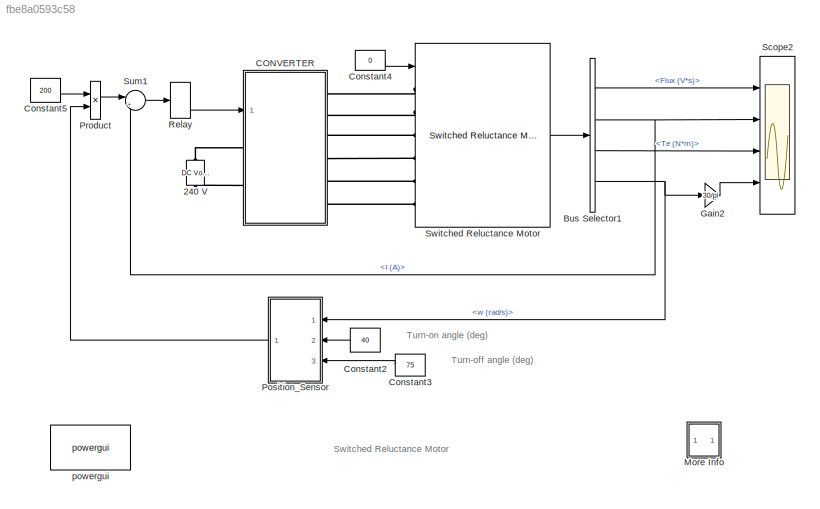
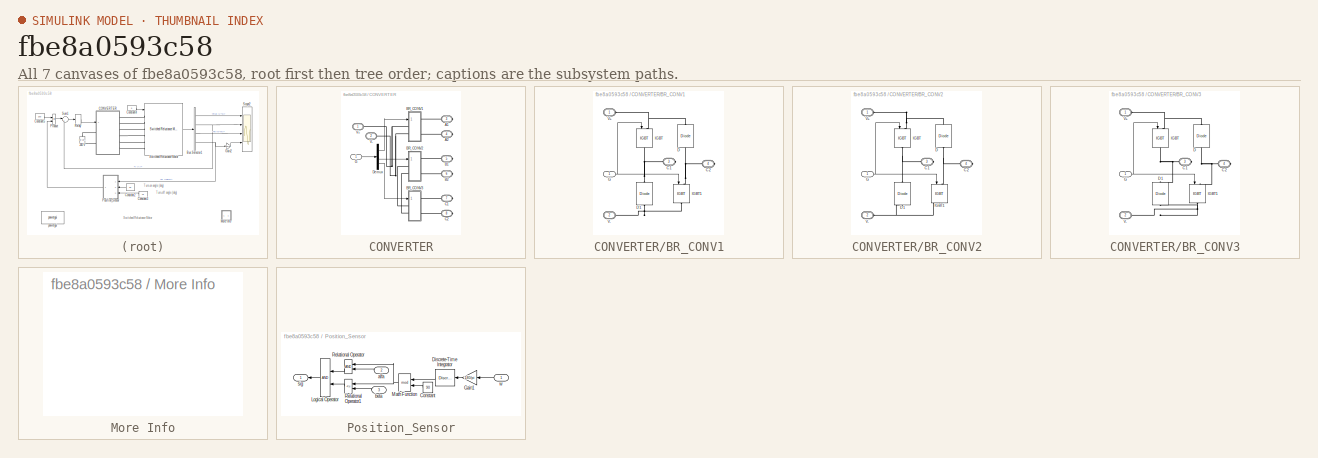
[diagram: thumbnail index - all 7 canvases of the model, root first then tree order]
MODEL slx_fbe8a0593c58
KIND model
CONFIG PreLoadFcn = Ts=1e-6;\nload srm64_60kw
BLOCK [Reference] 240 V  REF=powerlib/Electrical
Sources/DC Voltage Source
  Amplitude = 240
  Measurements = None
  Ports = [0, 0, 0, 0, 0, 1, 1]
  SourceBlock = powerlib/Electrical\nSources/DC Voltage Source
  SourceType = DC Voltage Source
BLOCK [BusSelector] Bus Selector1
  OutputSignals = Flux (V*s),I (A),Te (N*m),w (rad/s)
  Ports = [1, 4]
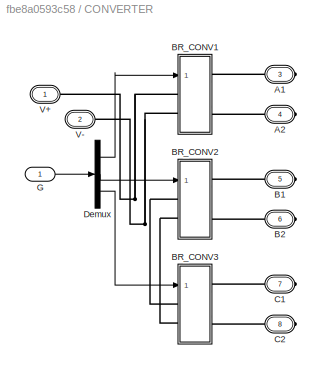
BLOCK [SubSystem] CONVERTER
  LoadFcn = find_system(gcs,'FollowLinks', 'on', 'LookUnderMasks', 'all');
  Ports = [1, 0, 0, 0, 0, 2, 6]
  RequestExecContextInheritance = off
BLOCK [PMIOPort] CONVERTER/A1
  Port = 3
  Side = Right
  Tag = PMCPort
BLOCK [PMIOPort] CONVERTER/A2
  Port = 4
  Side = Right
  Tag = PMCPort
BLOCK [PMIOPort] CONVERTER/B1
  Port = 5
  Side = Right
  Tag = PMCPort
BLOCK [PMIOPort] CONVERTER/B2
  Port = 6
  Side = Right
  Tag = PMCPort
BLOCK [SubSystem] CONVERTER/BR_CONV1
  Ports = [1, 0, 0, 0, 0, 2, 2]
  RequestExecContextInheritance = off
BLOCK [PMIOPort] CONVERTER/BR_CONV1/C1
  Port = 3
  Side = Right
  Tag = PMCPort
BLOCK [PMIOPort] CONVERTER/BR_CONV1/C2
  Port = 4
  Side = Right
  Tag = PMCPort
BLOCK [Reference] CONVERTER/BR_CONV1/D  REF=powerlib/Power
Electronics/Diode
  Cs = inf
  IC = 0
  Lon = 0
  Measurements = off
  Ports = [0, 0, 0, 0, 0, 1, 1]
  Ron = 1e-3
  Rs = 1000
  SourceBlock = powerlib/Power\nElectronics/Diode
  SourceType = Diode
  UseSnubber = off
  Vf = 0.8
BLOCK [Reference] CONVERTER/BR_CONV1/D1  REF=powerlib/Power
Electronics/Diode
  Cs = inf
  IC = 0
  Lon = 0
  Measurements = off
  Ports = [0, 0, 0, 0, 0, 1, 1]
  Ron = 1e-3
  Rs = 1000
  SourceBlock = powerlib/Power\nElectronics/Diode
  SourceType = Diode
  UseSnubber = off
  Vf = 0.8
BLOCK [Inport] CONVERTER/BR_CONV1/G
  IconDisplay = Port number
BLOCK [Reference] CONVERTER/BR_CONV1/IGBT  REF=powerlib/Power
Electronics/IGBT
  Cs = 0.1e-6
  IC = 0
  Lon = 0
  Measurements = off
  Ports = [1, 0, 0, 0, 0, 1, 1]
  Ron = 1e-3
  Rs = 200
  SourceBlock = powerlib/Power\nElectronics/IGBT
  SourceType = IGBT
  Tf = 0
  Tt = 0
  Vf = 1
BLOCK [Reference] CONVERTER/BR_CONV1/IGBT1  REF=powerlib/Power
Electronics/IGBT
  Cs = 0.1e-6
  IC = 0
  Lon = 0
  Measurements = off
  Ports = [1, 0, 0, 0, 0, 1, 1]
  Ron = 1e-3
  Rs = 200
  SourceBlock = powerlib/Power\nElectronics/IGBT
  SourceType = IGBT
  Tf = 0
  Tt = 0
  Vf = 1
BLOCK [PMIOPort] CONVERTER/BR_CONV1/V+
  Port = 1
  Side = Left
  Tag = PMCPort
BLOCK [PMIOPort] CONVERTER/BR_CONV1/V-
  Port = 2
  Side = Left
  Tag = PMCPort
BLOCK [SubSystem] CONVERTER/BR_CONV2
  Ports = [1, 0, 0, 0, 0, 2, 2]
  RequestExecContextInheritance = off
BLOCK [PMIOPort] CONVERTER/BR_CONV2/C1
  Port = 3
  Side = Right
  Tag = PMCPort
BLOCK [PMIOPort] CONVERTER/BR_CONV2/C2
  Port = 4
  Side = Right
  Tag = PMCPort
BLOCK [Reference] CONVERTER/BR_CONV2/D  REF=powerlib/Power
Electronics/Diode
  Cs = inf
  IC = 0
  Lon = 0
  Measurements = off
  Ports = [0, 0, 0, 0, 0, 1, 1]
  Ron = 1e-3
  Rs = 1000
  SourceBlock = powerlib/Power\nElectronics/Diode
  SourceType = Diode
  UseSnubber = off
  Vf = 0.8
BLOCK [Reference] CONVERTER/BR_CONV2/D1  REF=powerlib/Power
Electronics/Diode
  Cs = inf
  IC = 0
  Lon = 0
  Measurements = off
  Ports = [0, 0, 0, 0, 0, 1, 1]
  Ron = 1e-3
  Rs = 1000
  SourceBlock = powerlib/Power\nElectronics/Diode
  SourceType = Diode
  UseSnubber = off
  Vf = 0.8
BLOCK [Inport] CONVERTER/BR_CONV2/G
  IconDisplay = Port number
BLOCK [Reference] CONVERTER/BR_CONV2/IGBT  REF=powerlib/Power
Electronics/IGBT
  Cs = 0.1e-6
  IC = 0
  Lon = 0
  Measurements = off
  Ports = [1, 0, 0, 0, 0, 1, 1]
  Ron = 1e-3
  Rs = 200
  SourceBlock = powerlib/Power\nElectronics/IGBT
  SourceType = IGBT
  Tf = 0
  Tt = 0
  Vf = 1
BLOCK [Reference] CONVERTER/BR_CONV2/IGBT1  REF=powerlib/Power
Electronics/IGBT
  Cs = 0.1e-6
  IC = 0
  Lon = 0
  Measurements = off
  Ports = [1, 0, 0, 0, 0, 1, 1]
  Ron = 1e-3
  Rs = 200
  SourceBlock = powerlib/Power\nElectronics/IGBT
  SourceType = IGBT
  Tf = 0
  Tt = 0
  Vf = 1
BLOCK [PMIOPort] CONVERTER/BR_CONV2/V+
  Port = 1
  Side = Left
  Tag = PMCPort
BLOCK [PMIOPort] CONVERTER/BR_CONV2/V-
  Port = 2
  Side = Left
  Tag = PMCPort
BLOCK [SubSystem] CONVERTER/BR_CONV3
  Ports = [1, 0, 0, 0, 0, 2, 2]
  RequestExecContextInheritance = off
BLOCK [PMIOPort] CONVERTER/BR_CONV3/C1
  Port = 3
  Side = Right
  Tag = PMCPort
BLOCK [PMIOPort] CONVERTER/BR_CONV3/C2
  Port = 4
  Side = Right
  Tag = PMCPort
BLOCK [Reference] CONVERTER/BR_CONV3/D  REF=powerlib/Power
Electronics/Diode
  Cs = inf
  IC = 0
  Lon = 0
  Measurements = off
  Ports = [0, 0, 0, 0, 0, 1, 1]
  Ron = 1e-3
  Rs = 1000
  SourceBlock = powerlib/Power\nElectronics/Diode
  SourceType = Diode
  UseSnubber = off
  Vf = 0.8
BLOCK [Reference] CONVERTER/BR_CONV3/D1  REF=powerlib/Power
Electronics/Diode
  Cs = inf
  IC = 0
  Lon = 0
  Measurements = off
  Ports = [0, 0, 0, 0, 0, 1, 1]
  Ron = 1e-3
  Rs = 1000
  SourceBlock = powerlib/Power\nElectronics/Diode
  SourceType = Diode
  UseSnubber = off
  Vf = 0.8
BLOCK [Inport] CONVERTER/BR_CONV3/G
  IconDisplay = Port number
BLOCK [Reference] CONVERTER/BR_CONV3/IGBT  REF=powerlib/Power
Electronics/IGBT
  Cs = 0.1e-6
  IC = 0
  Lon = 0
  Measurements = off
  Ports = [1, 0, 0, 0, 0, 1, 1]
  Ron = 1e-3
  Rs = 200
  SourceBlock = powerlib/Power\nElectronics/IGBT
  SourceType = IGBT
  Tf = 0
  Tt = 0
  Vf = 1
BLOCK [Reference] CONVERTER/BR_CONV3/IGBT1  REF=powerlib/Power
Electronics/IGBT
  Cs = 0.1e-6
  IC = 0
  Lon = 0
  Measurements = off
  Ports = [1, 0, 0, 0, 0, 1, 1]
  Ron = 1e-3
  Rs = 200
  SourceBlock = powerlib/Power\nElectronics/IGBT
  SourceType = IGBT
  Tf = 0
  Tt = 0
  Vf = 1
BLOCK [PMIOPort] CONVERTER/BR_CONV3/V+
  Port = 1
  Side = Left
  Tag = PMCPort
BLOCK [PMIOPort] CONVERTER/BR_CONV3/V-
  Port = 2
  Side = Left
  Tag = PMCPort
BLOCK [PMIOPort] CONVERTER/C1
  Port = 7
  Side = Right
  Tag = PMCPort
BLOCK [PMIOPort] CONVERTER/C2
  Port = 8
  Side = Right
  Tag = PMCPort
BLOCK [Demux] CONVERTER/Demux
  Outputs = 3
  Ports = [1, 3]
BLOCK [Inport] CONVERTER/G
  IconDisplay = Port number
BLOCK [PMIOPort] CONVERTER/V+
  Port = 1
  Side = Left
  Tag = PMCPort
BLOCK [PMIOPort] CONVERTER/V-
  Port = 2
  Side = Left
  Tag = PMCPort
BLOCK [Constant] Constant2
  Value = 40
BLOCK [Constant] Constant3
  Value = 75
BLOCK [Constant] Constant4
  Value = 0
BLOCK [Constant] Constant5
  Value = 200
BLOCK [Gain] Gain2
  Gain = 30/pi
BLOCK [SubSystem] More Info
  OpenFcn = showdemo(bdroot(gcb))
  Ports = []
  RequestExecContextInheritance = off
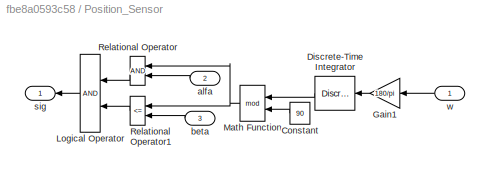
BLOCK [SubSystem] Position_Sensor
  Ports = [3, 1]
  RequestExecContextInheritance = off
BLOCK [Constant] Position_Sensor/Constant
  Value = 90
BLOCK [DiscreteIntegrator] Position_Sensor/Discrete-Time Integrator
  ICPrevOutput = DiscIntNeverNeededParam
  ICPrevScaledInput = DiscIntNeverNeededParam
  InitialCondition = [0 -30 -60]
  Ports = [1, 1]
  SampleTime = Ts
BLOCK [Gain] Position_Sensor/Gain1
  Gain = 180/pi
BLOCK [Logic] Position_Sensor/Logical Operator
  AllPortsSameDT = off
  Ports = [2, 1]
BLOCK [Math] Position_Sensor/Math Function
  Operator = mod
  Ports = [2, 1]
BLOCK [RelationalOperator] Position_Sensor/Relational Operator
  InputSameDT = off
  Ports = [2, 1]
BLOCK [RelationalOperator] Position_Sensor/Relational Operator1
  InputSameDT = off
  Operator = <=
  Ports = [2, 1]
BLOCK [Inport] Position_Sensor/alfa
  IconDisplay = Port number
  Port = 2
BLOCK [Inport] Position_Sensor/beta
  IconDisplay = Port number
  Port = 3
BLOCK [Outport] Position_Sensor/sig
  IconDisplay = Port number
BLOCK [Inport] Position_Sensor/w
  IconDisplay = Port number
BLOCK [Product] Product
  InputSameDT = off
  Ports = [2, 1]
  RndMeth = Floor
BLOCK [Relay] Relay
  OffSwitchValue = -10
  OnSwitchValue = 10
  SampleTime = Ts
BLOCK [Scope] Scope2
  DataFormat = StructureWithTime
  Decimation = 10
  Floating = off
  LimitDataPoints = off
  NumInputPorts = 4
  Ports = [4]
  SampleTime = 0
  SaveName = VI
  SaveToWorkspace = on
  ShowLegends = off
  TimeRange = 0.35
  YMax = 0.6000000000000001~300~150~5000
  YMin = -0.2~-100~0~0
  ZoomMode = xonly
BLOCK [Sum] Sum1
  IconShape = round
  InputSameDT = off
  Inputs = |+-
  OutDataTypeStr = Inherit: Inherit via internal rule
  Ports = [2, 1]
BLOCK [Reference] Switched Reluctance Motor  REF=powerlib/Machines/Switched Reluctance
Motor
  Friction = 0.02
  Inertia = 0.05
  InitialSpeed = [0,0]
  Ld = 23.6e-3
  Lq = 0.67e-3
  Lsat = 0.15e-3
  MachineModel = Specific model
  MachineType = 6/4
  MagnetisationCharacteristic = 'srm64_60kw.mat'
  MaximumCurrent = 450
  MaximumFluxLinkage = 0.486
  PlotCurves = off
  Ports = [1, 1, 0, 0, 0, 6]
  RotorAngleVector = [0 10 20 30 40 45]
  SourceBlock = powerlib/Machines/Switched Reluctance\nMotor
  SourceType = Switched Reluctance Motor
  StatorCurrentVector = 0:25:450
  StatorResistance = 0.05
  TsBlock = -1
  TsPowergui = 0
BLOCK [Reference] powergui  REF=powerlib/powergui
  DisableRonSwitches = off
  DisableSnubberDevices = off
  DisableVfSwitches = off
  DisplayEquations = off
  DisplayStyle = 1
  EnableUseOfTLC = off
  ErrMax = 1e-4
  Frange = [0:2:500]
  FreqAxis = off
  FunctionMessages = off
  HookPort = off
  Interpol = off
  Iterations = 50
  MaxFrequency = 1000
  Pbase = 100e6
  Ports = []
  Priority = 2
  ResistiveCurrentMeasurement = off
  RestoreLinks = warning
  RmsSteady = 1
  SPID = off
  SampleTime = Ts
  ShowGrid = off
  SolverType = Tustin
  SourceBlock = powerlib/powergui
  SourceType = PSB option menu block
  StartTime = 0.0
  SwTol = 0
  Ts = 0
  UnitsV = kV
  UnitsW = MW
  Xlog = on
  Ylog = off
  ZoomFFT = on
  cycles = 1
  display = off
  echomessages = off
  frequency = 60
  frequencyindice = 0
  frequencyindicesteady = 1
  fundamental = 60
  methode = off
  save = off
  structure = 0
  variable = ZData
  x0status = blocks
ANNOTATION (root): Switched Reluctance Motor
ANNOTATION (root): Turn-off angle (deg)
ANNOTATION (root): Turn-on angle (deg)
LINE Bus Selector1:1 -> Scope2:1
NET Bus Selector1:2 -> Scope2:2, Sum1:2
LINE Bus Selector1:3 -> Scope2:3
NET Bus Selector1:4 -> Gain2:1, Position_Sensor:1
NET CONVERTER/BR_CONV1/G:1 -> CONVERTER/BR_CONV1/IGBT1:1, CONVERTER/BR_CONV1/IGBT:1
NET CONVERTER/BR_CONV2/G:1 -> CONVERTER/BR_CONV2/IGBT1:1, CONVERTER/BR_CONV2/IGBT:1
NET CONVERTER/BR_CONV3/G:1 -> CONVERTER/BR_CONV3/IGBT1:1, CONVERTER/BR_CONV3/IGBT:1
LINE CONVERTER/Demux:1 -> CONVERTER/BR_CONV1:1
LINE CONVERTER/Demux:2 -> CONVERTER/BR_CONV2:1
LINE CONVERTER/Demux:3 -> CONVERTER/BR_CONV3:1
LINE CONVERTER/G:1 -> CONVERTER/Demux:1
LINE Constant2:1 -> Position_Sensor:2
LINE Constant3:1 -> Position_Sensor:3
LINE Constant4:1 -> Switched Reluctance Motor:1
LINE Constant5:1 -> Product:1
LINE Gain2:1 -> Scope2:4
LINE Position_Sensor/Constant:1 -> Position_Sensor/Math Function:2
LINE Position_Sensor/Discrete-Time Integrator:1 -> Position_Sensor/Math Function:1
LINE Position_Sensor/Gain1:1 -> Position_Sensor/Discrete-Time Integrator:1
LINE Position_Sensor/Logical Operator:1 -> Position_Sensor/sig:1
NET Position_Sensor/Math Function:1 -> Position_Sensor/Relational Operator1:1, Position_Sensor/Relational Operator:1
LINE Position_Sensor/Relational Operator1:1 -> Position_Sensor/Logical Operator:2
LINE Position_Sensor/Relational Operator:1 -> Position_Sensor/Logical Operator:1
LINE Position_Sensor/alfa:1 -> Position_Sensor/Relational Operator:2
LINE Position_Sensor/beta:1 -> Position_Sensor/Relational Operator1:2
LINE Position_Sensor/w:1 -> Position_Sensor/Gain1:1
LINE Position_Sensor:1 -> Product:2
LINE Product:1 -> Sum1:1
LINE Relay:1 -> CONVERTER:1
LINE Sum1:1 -> Relay:1
LINE Switched Reluctance Motor:1 -> Bus Selector1:1
PLINE 240 V:LConn1 -- CONVERTER:LConn2
PLINE 240 V:RConn1 -- CONVERTER:LConn1
PLINE CONVERTER/A1:RConn1 -- CONVERTER/BR_CONV1:RConn1
PLINE CONVERTER/A2:RConn1 -- CONVERTER/BR_CONV1:RConn2
PLINE CONVERTER/B1:RConn1 -- CONVERTER/BR_CONV2:RConn1
PLINE CONVERTER/B2:RConn1 -- CONVERTER/BR_CONV2:RConn2
PNET net1: CONVERTER/BR_CONV1/C1:RConn1 -- CONVERTER/BR_CONV1/D1:RConn1 -- CONVERTER/BR_CONV1/IGBT:RConn1
PNET net2: CONVERTER/BR_CONV1/C2:RConn1 -- CONVERTER/BR_CONV1/D:LConn1 -- CONVERTER/BR_CONV1/IGBT1:LConn1
PNET net3: CONVERTER/BR_CONV1/D1:LConn1 -- CONVERTER/BR_CONV1/IGBT1:RConn1 -- CONVERTER/BR_CONV1/V-:RConn1
PNET net4: CONVERTER/BR_CONV1/D:RConn1 -- CONVERTER/BR_CONV1/IGBT:LConn1 -- CONVERTER/BR_CONV1/V+:RConn1
PNET net5: CONVERTER/BR_CONV1:LConn1 -- CONVERTER/BR_CONV2:LConn1 -- CONVERTER/BR_CONV3:LConn1 -- CONVERTER/V+:RConn1
PNET net6: CONVERTER/BR_CONV1:LConn2 -- CONVERTER/BR_CONV2:LConn2 -- CONVERTER/BR_CONV3:LConn2 -- CONVERTER/V-:RConn1
PNET net7: CONVERTER/BR_CONV2/C1:RConn1 -- CONVERTER/BR_CONV2/D1:RConn1 -- CONVERTER/BR_CONV2/IGBT:RConn1
PNET net8: CONVERTER/BR_CONV2/C2:RConn1 -- CONVERTER/BR_CONV2/D:LConn1 -- CONVERTER/BR_CONV2/IGBT1:LConn1
PNET net9: CONVERTER/BR_CONV2/D1:LConn1 -- CONVERTER/BR_CONV2/IGBT1:RConn1 -- CONVERTER/BR_CONV2/V-:RConn1
PNET net10: CONVERTER/BR_CONV2/D:RConn1 -- CONVERTER/BR_CONV2/IGBT:LConn1 -- CONVERTER/BR_CONV2/V+:RConn1
PNET net11: CONVERTER/BR_CONV3/C1:RConn1 -- CONVERTER/BR_CONV3/D1:RConn1 -- CONVERTER/BR_CONV3/IGBT:RConn1
PNET net12: CONVERTER/BR_CONV3/C2:RConn1 -- CONVERTER/BR_CONV3/D:LConn1 -- CONVERTER/BR_CONV3/IGBT1:LConn1
PNET net13: CONVERTER/BR_CONV3/D1:LConn1 -- CONVERTER/BR_CONV3/IGBT1:RConn1 -- CONVERTER/BR_CONV3/V-:RConn1
PNET net14: CONVERTER/BR_CONV3/D:RConn1 -- CONVERTER/BR_CONV3/IGBT:LConn1 -- CONVERTER/BR_CONV3/V+:RConn1
PLINE CONVERTER/BR_CONV3:RConn1 -- CONVERTER/C1:RConn1
PLINE CONVERTER/BR_CONV3:RConn2 -- CONVERTER/C2:RConn1
PLINE CONVERTER:RConn1 -- Switched Reluctance Motor:LConn1
PLINE CONVERTER:RConn2 -- Switched Reluctance Motor:LConn2
PLINE CONVERTER:RConn3 -- Switched Reluctance Motor:LConn3
PLINE CONVERTER:RConn4 -- Switched Reluctance Motor:LConn4
PLINE CONVERTER:RConn5 -- Switched Reluctance Motor:LConn5
PLINE CONVERTER:RConn6 -- Switched Reluctance Motor:LConn6
note: NET lines group one-source signal fan-out (src -> all destinations, sorted); 1:1 wires keep LINE; PNET lines group multi-terminal physical nets as a canonical sorted terminal list (undirected conserving connections); 2-terminal nets keep the pairwise PLINE form
